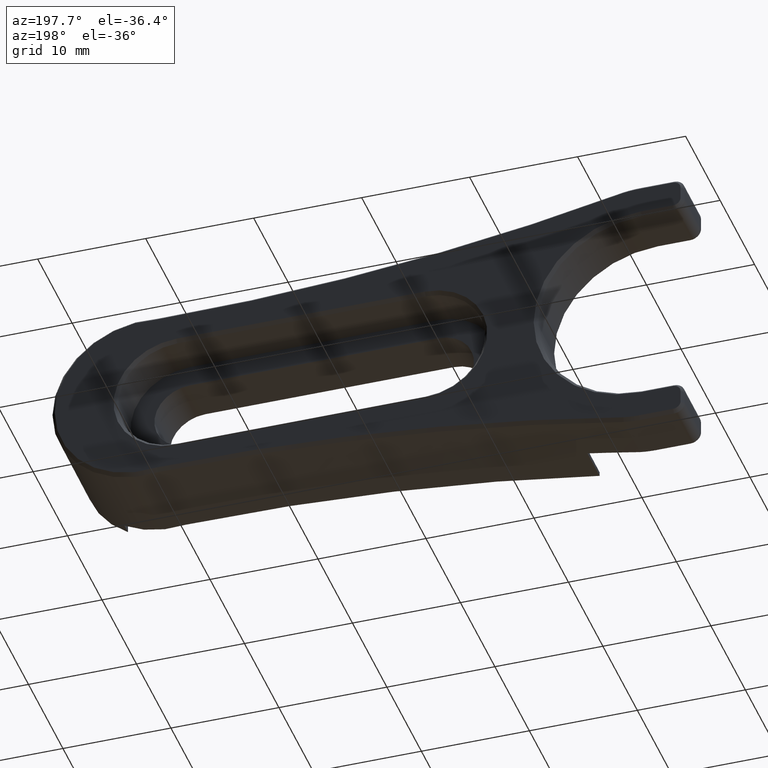
[diagram: clean part render]
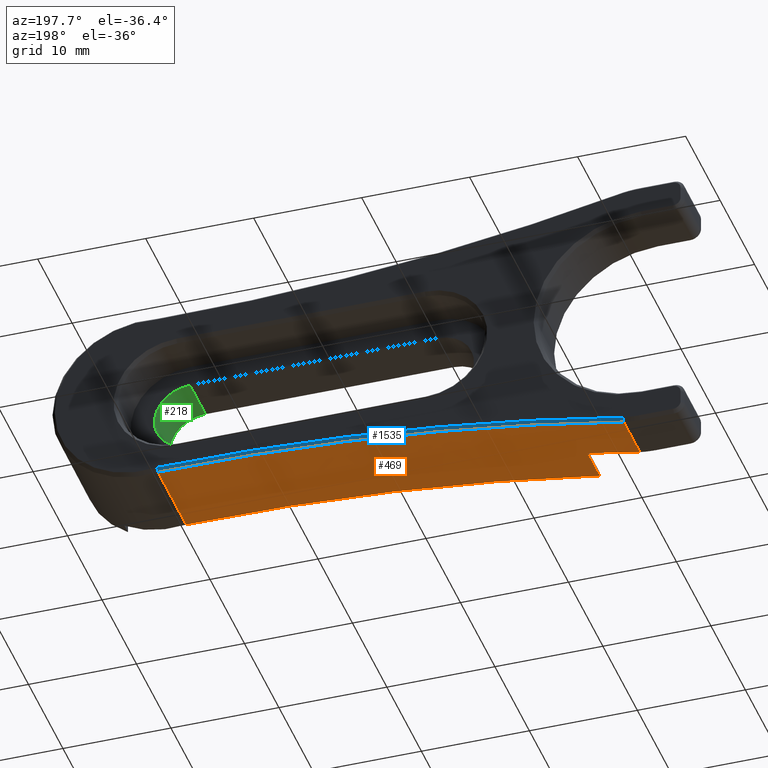
[diagram: same view with three faces highlighted in distinct colors, each labeled with its STEP entity id]
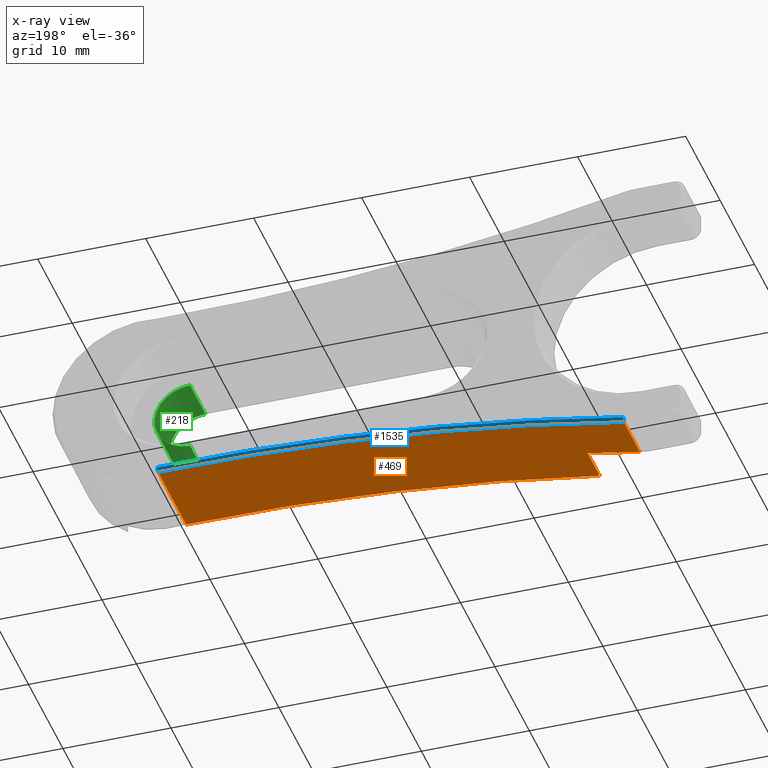
[diagram: x-ray of the same camera — body ghosted, the three highlighted faces saturated]
A machine part, auxiliary view with three faces highlighted in distinct colors.
The next image is the same camera in x-ray (body ghosted, the three faces saturated) — at least one of them is partly hidden behind the body in this view.
Their STEP definitions:

[orange] entity #469 — the highlighted cylindrical surface (partial cylindrical patch) has radius 199.995 mm, axis along (-0, -1, -0).
#41 = CARTESIAN_POINT ( 'NONE',  ( -66.59457426940821279, 1.599999999999998979, -38.32969599760033219 ) ) ;
#42 = DIRECTION ( 'NONE',  ( 0.000000000000000000, 1.000000000000000000, 0.000000000000000000 ) ) ;
#50 = LINE ( 'NONE', #1183, #972 ) ;
#53 = EDGE_CURVE ( 'NONE', #640, #1440, #50, .T. ) ;
#54 = VERTEX_POINT ( 'NONE', #543 ) ;
#61 = AXIS2_PLACEMENT_3D ( 'NONE', #1378, #773, #1272 ) ;
#71 = LINE ( 'NONE', #584, #1229 ) ;
#99 = ORIENTED_EDGE ( 'NONE', *, *, #1577, .F. ) ;
#113 = AXIS2_PLACEMENT_3D ( 'NONE', #1316, #180, #803 ) ;
#180 = DIRECTION ( 'NONE',  ( -0.000000000000000000, -1.000000000000000000, -0.000000000000000000 ) ) ;
#244 = AXIS2_PLACEMENT_3D ( 'NONE', #1255, #1520, #635 ) ;
#259 = EDGE_CURVE ( 'NONE', #696, #333, #1207, .T. ) ;
#300 = EDGE_CURVE ( 'NONE', #1440, #696, #945, .T. ) ;
#317 = CARTESIAN_POINT ( 'NONE',  ( -71.43420546124598047, 9.800000000000006040, -39.27448485939512324 ) ) ;
#327 = DIRECTION ( 'NONE',  ( -0.000000000000000000, -1.000000000000000000, -0.000000000000000000 ) ) ;
#333 = VERTEX_POINT ( 'NONE', #895 ) ;
#429 = ORIENTED_EDGE ( 'NONE', *, *, #53, .F. ) ;
#458 = CARTESIAN_POINT ( 'NONE',  ( -30.69780068763250469, 9.799999999999997158, -235.0768007346056834 ) ) ;
#469 = ADVANCED_FACE ( 'NONE', ( #1019 ), #1004, .F. ) ;
#485 = DIRECTION ( 'NONE',  ( 0.000000000000000000, 0.000000000000000000, -1.000000000000000000 ) ) ;
#538 = ORIENTED_EDGE ( 'NONE', *, *, #300, .F. ) ;
#543 = CARTESIAN_POINT ( 'NONE',  ( -66.59457426940821279, 5.100000000000000533, -38.32969599760033219 ) ) ;
#564 = VERTEX_POINT ( 'NONE', #41 ) ;
#574 = CIRCLE ( 'NONE', #61, 199.9950038775354244 ) ;
#584 = CARTESIAN_POINT ( 'NONE',  ( -66.59457426940821279, 10.09999999999999964, -38.32969599760033219 ) ) ;
#596 = EDGE_LOOP ( 'NONE', ( #538, #429, #786, #99, #1242, #1476 ) ) ;
#635 = DIRECTION ( 'NONE',  ( 0.000000000000000000, 0.000000000000000000, -1.000000000000000000 ) ) ;
#640 = VERTEX_POINT ( 'NONE', #1107 ) ;
#696 = VERTEX_POINT ( 'NONE', #317 ) ;
#738 = DIRECTION ( 'NONE',  ( -0.000000000000000000, -1.000000000000000000, -0.000000000000000000 ) ) ;
#773 = DIRECTION ( 'NONE',  ( -0.000000000000000000, 1.000000000000000000, -0.000000000000000000 ) ) ;
#786 = ORIENTED_EDGE ( 'NONE', *, *, #1363, .T. ) ;
#803 = DIRECTION ( 'NONE',  ( 0.000000000000000000, 0.000000000000000000, 1.000000000000000000 ) ) ;
#860 = CARTESIAN_POINT ( 'NONE',  ( -71.43420546124562520, 10.09999999999999964, -39.27448485939502376 ) ) ;
#863 = AXIS2_PLACEMENT_3D ( 'NONE', #458, #738, #485 ) ;
#895 = CARTESIAN_POINT ( 'NONE',  ( -71.43420546124562520, 5.100000000000000533, -39.27448485939502376 ) ) ;
#945 = CIRCLE ( 'NONE', #863, 199.9950038775354244 ) ;
#972 = VECTOR ( 'NONE', #42, 1000.000000000000000 ) ;
#1004 = CYLINDRICAL_SURFACE ( 'NONE', #244, 199.9950038775354244 ) ;
#1019 = FACE_OUTER_BOUND ( 'NONE', #596, .T. ) ;
#1107 = CARTESIAN_POINT ( 'NONE',  ( -28.30893117806940396, 1.599999999999998979, -35.09606446622984066 ) ) ;
#1183 = CARTESIAN_POINT ( 'NONE',  ( -28.30893117806940396, 10.09999999999999964, -35.09606446622984066 ) ) ;
#1207 = LINE ( 'NONE', #860, #1624 ) ;
#1229 = VECTOR ( 'NONE', #327, 1000.000000000000000 ) ;
#1241 = EDGE_CURVE ( 'NONE', #333, #54, #574, .T. ) ;
#1242 = ORIENTED_EDGE ( 'NONE', *, *, #1241, .F. ) ;
#1255 = CARTESIAN_POINT ( 'NONE',  ( -30.69780068763250469, 10.09999999999999964, -235.0768007346056834 ) ) ;
#1272 = DIRECTION ( 'NONE',  ( -5.329203644970996142E-14, 0.000000000000000000, -1.000000000000000000 ) ) ;
#1316 = CARTESIAN_POINT ( 'NONE',  ( -30.69780068763250469, 1.599999999999998979, -235.0768007346056834 ) ) ;
#1363 = EDGE_CURVE ( 'NONE', #640, #564, #1385, .T. ) ;
#1378 = CARTESIAN_POINT ( 'NONE',  ( -30.69780068763250469, 5.100000000000000533, -235.0768007346056834 ) ) ;
#1385 = CIRCLE ( 'NONE', #113, 199.9950038775354244 ) ;
#1440 = VERTEX_POINT ( 'NONE', #1549 ) ;
#1476 = ORIENTED_EDGE ( 'NONE', *, *, #259, .F. ) ;
#1477 = DIRECTION ( 'NONE',  ( -0.000000000000000000, -1.000000000000000000, -0.000000000000000000 ) ) ;
#1520 = DIRECTION ( 'NONE',  ( -0.000000000000000000, -1.000000000000000000, -0.000000000000000000 ) ) ;
#1549 = CARTESIAN_POINT ( 'NONE',  ( -28.30893117806958870, 9.799999999999997158, -35.09606446622982645 ) ) ;
#1577 = EDGE_CURVE ( 'NONE', #54, #564, #71, .T. ) ;
#1624 = VECTOR ( 'NONE', #1477, 1000.000000000000000 ) ;

[blue] entity #1535 — the highlighted conical surface has half-angle 45 deg.
#18 = ORIENTED_EDGE ( 'NONE', *, *, #946, .F. ) ;
#160 = CARTESIAN_POINT ( 'NONE',  ( -28.28451932144954029, 10.09999999999999787, -34.79633575773991083 ) ) ;
#169 = CONICAL_SURFACE ( 'NONE', #997, 200.2950038775354074, 0.7853981633974165266 ) ;
#188 = ORIENTED_EDGE ( 'NONE', *, *, #300, .T. ) ;
#234 = CARTESIAN_POINT ( 'NONE',  ( -30.69780068763250469, 10.09999999999999787, -235.0768007346056834 ) ) ;
#252 = CIRCLE ( 'NONE', #836, 200.2950038775353789 ) ;
#297 = B_SPLINE_CURVE_WITH_KNOTS ( 'NONE', 3,
 ( #1180, #585, #298, #799 ),
 .UNSPECIFIED., .F., .F.,
 ( 4, 4 ),
 ( 1.110764993427085326E-17, 0.0004247743370740290035 ),
 .UNSPECIFIED. ) ;
#298 = CARTESIAN_POINT ( 'NONE',  ( -28.29272220523627013, 10.00000210567369052, -34.89624207045768145 ) ) ;
#300 = EDGE_CURVE ( 'NONE', #1440, #696, #945, .T. ) ;
#317 = CARTESIAN_POINT ( 'NONE',  ( -71.43420546124598047, 9.800000000000006040, -39.27448485939512324 ) ) ;
#365 = DIRECTION ( 'NONE',  ( 0.000000000000000000, 0.000000000000000000, 1.000000000000000000 ) ) ;
#391 = B_SPLINE_CURVE_WITH_KNOTS ( 'NONE', 3,
 ( #551, #1433, #533, #1288 ),
 .UNSPECIFIED., .F., .F.,
 ( 4, 4 ),
 ( 3.469446951953614189E-18, 0.0004243384332509666937 ),
 .UNSPECIFIED. ) ;
#458 = CARTESIAN_POINT ( 'NONE',  ( -30.69780068763250469, 9.799999999999997158, -235.0768007346056834 ) ) ;
#474 = EDGE_CURVE ( 'NONE', #1502, #696, #391, .T. ) ;
#485 = DIRECTION ( 'NONE',  ( 0.000000000000000000, 0.000000000000000000, -1.000000000000000000 ) ) ;
#486 = CARTESIAN_POINT ( 'NONE',  ( -30.69780068763250469, 10.10000000000001386, -235.0768007346056834 ) ) ;
#533 = CARTESIAN_POINT ( 'NONE',  ( -71.45200038704003020, 9.900000250983884698, -39.17604552686194097 ) ) ;
#551 = CARTESIAN_POINT ( 'NONE',  ( -71.48752834354273489, 10.09999999999999964, -38.97915491482896044 ) ) ;
#585 = CARTESIAN_POINT ( 'NONE',  ( -28.30085837010900107, 9.900002048656606490, -34.99615171664765967 ) ) ;
#658 = DIRECTION ( 'NONE',  ( 0.000000000000000000, 0.000000000000000000, 1.000000000000000000 ) ) ;
#696 = VERTEX_POINT ( 'NONE', #317 ) ;
#738 = DIRECTION ( 'NONE',  ( -0.000000000000000000, -1.000000000000000000, -0.000000000000000000 ) ) ;
#766 = DIRECTION ( 'NONE',  ( 0.000000000000000000, -1.000000000000000000, -0.000000000000000000 ) ) ;
#799 = CARTESIAN_POINT ( 'NONE',  ( -28.28451932144954029, 10.09999999999999787, -34.79633575773991083 ) ) ;
#827 = ORIENTED_EDGE ( 'NONE', *, *, #474, .F. ) ;
#836 = AXIS2_PLACEMENT_3D ( 'NONE', #234, #766, #658 ) ;
#853 = CARTESIAN_POINT ( 'NONE',  ( -71.48752834354273489, 10.09999999999999964, -38.97915491482896044 ) ) ;
#863 = AXIS2_PLACEMENT_3D ( 'NONE', #458, #738, #485 ) ;
#945 = CIRCLE ( 'NONE', #863, 199.9950038775354244 ) ;
#946 = EDGE_CURVE ( 'NONE', #1440, #1422, #297, .T. ) ;
#997 = AXIS2_PLACEMENT_3D ( 'NONE', #486, #1091, #365 ) ;
#1091 = DIRECTION ( 'NONE',  ( -0.000000000000000000, 1.000000000000000000, 0.000000000000000000 ) ) ;
#1109 = FACE_OUTER_BOUND ( 'NONE', #1380, .T. ) ;
#1180 = CARTESIAN_POINT ( 'NONE',  ( -28.30893117806958870, 9.799999999999997158, -35.09606446622982645 ) ) ;
#1288 = CARTESIAN_POINT ( 'NONE',  ( -71.43420546124598047, 9.800000000000006040, -39.27448485939512324 ) ) ;
#1359 = ORIENTED_EDGE ( 'NONE', *, *, #1636, .F. ) ;
#1380 = EDGE_LOOP ( 'NONE', ( #188, #827, #1359, #18 ) ) ;
#1422 = VERTEX_POINT ( 'NONE', #160 ) ;
#1433 = CARTESIAN_POINT ( 'NONE',  ( -71.46977498256944727, 10.00000025690160754, -39.07760226789057612 ) ) ;
#1440 = VERTEX_POINT ( 'NONE', #1549 ) ;
#1502 = VERTEX_POINT ( 'NONE', #853 ) ;
#1535 = ADVANCED_FACE ( 'NONE', ( #1109 ), #169, .F. ) ;
#1549 = CARTESIAN_POINT ( 'NONE',  ( -28.30893117806958870, 9.799999999999997158, -35.09606446622982645 ) ) ;
#1636 = EDGE_CURVE ( 'NONE', #1422, #1502, #252, .T. ) ;

[green] entity #218 — the highlighted cylindrical surface (partial cylindrical patch) has radius 3.3 mm, axis along (-0, -1, -0).
#7 = ORIENTED_EDGE ( 'NONE', *, *, #1342, .T. ) ;
#45 = VERTEX_POINT ( 'NONE', #58 ) ;
#47 = CARTESIAN_POINT ( 'NONE',  ( -30.09457426940821279, 6.100000000000000533, -29.99062565510759271 ) ) ;
#58 = CARTESIAN_POINT ( 'NONE',  ( -30.09457426940821279, 1.599999999999998979, -29.99062565510759271 ) ) ;
#100 = CYLINDRICAL_SURFACE ( 'NONE', #1230, 3.299999999999997158 ) ;
#218 = ADVANCED_FACE ( 'NONE', ( #981 ), #100, .F. ) ;
#289 = ORIENTED_EDGE ( 'NONE', *, *, #663, .F. ) ;
#322 = VERTEX_POINT ( 'NONE', #771 ) ;
#323 = DIRECTION ( 'NONE',  ( -0.000000000000000000, -1.000000000000000000, -0.000000000000000000 ) ) ;
#435 = DIRECTION ( 'NONE',  ( -0.000000000000000000, -1.000000000000000000, -0.000000000000000000 ) ) ;
#447 = CARTESIAN_POINT ( 'NONE',  ( -30.09457426940821279, 1.599999999999998979, -26.69062565510759555 ) ) ;
#494 = CIRCLE ( 'NONE', #1404, 3.299999999999997158 ) ;
#498 = VECTOR ( 'NONE', #323, 1000.000000000000000 ) ;
#499 = ORIENTED_EDGE ( 'NONE', *, *, #642, .F. ) ;
#573 = DIRECTION ( 'NONE',  ( -0.000000000000000000, -1.000000000000000000, -0.000000000000000000 ) ) ;
#642 = EDGE_CURVE ( 'NONE', #1145, #322, #857, .T. ) ;
#652 = CIRCLE ( 'NONE', #1600, 3.299999999999997158 ) ;
#663 = EDGE_CURVE ( 'NONE', #1001, #1145, #494, .T. ) ;
#723 = LINE ( 'NONE', #1478, #1308 ) ;
#740 = DIRECTION ( 'NONE',  ( 0.000000000000000000, 1.000000000000000000, 0.000000000000000000 ) ) ;
#771 = CARTESIAN_POINT ( 'NONE',  ( -30.09457426940821279, 1.599999999999998979, -23.39062565510759839 ) ) ;
#813 = DIRECTION ( 'NONE',  ( 0.000000000000000000, 0.000000000000000000, 1.000000000000000000 ) ) ;
#857 = LINE ( 'NONE', #1081, #498 ) ;
#965 = CARTESIAN_POINT ( 'NONE',  ( -30.09457426940821279, 6.100000000000000533, -23.39062565510759839 ) ) ;
#970 = DIRECTION ( 'NONE',  ( 0.000000000000000000, 0.000000000000000000, 1.000000000000000000 ) ) ;
#981 = FACE_OUTER_BOUND ( 'NONE', #1136, .T. ) ;
#1001 = VERTEX_POINT ( 'NONE', #47 ) ;
#1081 = CARTESIAN_POINT ( 'NONE',  ( -30.09457426940821279, 10.09999999999999964, -23.39062565510759839 ) ) ;
#1136 = EDGE_LOOP ( 'NONE', ( #289, #1266, #7, #499 ) ) ;
#1145 = VERTEX_POINT ( 'NONE', #965 ) ;
#1230 = AXIS2_PLACEMENT_3D ( 'NONE', #1352, #1580, #1469 ) ;
#1266 = ORIENTED_EDGE ( 'NONE', *, *, #1462, .F. ) ;
#1308 = VECTOR ( 'NONE', #740, 1000.000000000000000 ) ;
#1342 = EDGE_CURVE ( 'NONE', #45, #322, #652, .T. ) ;
#1350 = CARTESIAN_POINT ( 'NONE',  ( -30.09457426940821279, 6.100000000000000533, -26.69062565510759555 ) ) ;
#1352 = CARTESIAN_POINT ( 'NONE',  ( -30.09457426940821279, 10.09999999999999964, -26.69062565510759555 ) ) ;
#1404 = AXIS2_PLACEMENT_3D ( 'NONE', #1350, #573, #970 ) ;
#1462 = EDGE_CURVE ( 'NONE', #45, #1001, #723, .T. ) ;
#1469 = DIRECTION ( 'NONE',  ( 0.000000000000000000, 0.000000000000000000, -1.000000000000000000 ) ) ;
#1478 = CARTESIAN_POINT ( 'NONE',  ( -30.09457426940821279, 10.09999999999999964, -29.99062565510759271 ) ) ;
#1580 = DIRECTION ( 'NONE',  ( -0.000000000000000000, -1.000000000000000000, -0.000000000000000000 ) ) ;
#1600 = AXIS2_PLACEMENT_3D ( 'NONE', #447, #435, #813 ) ;